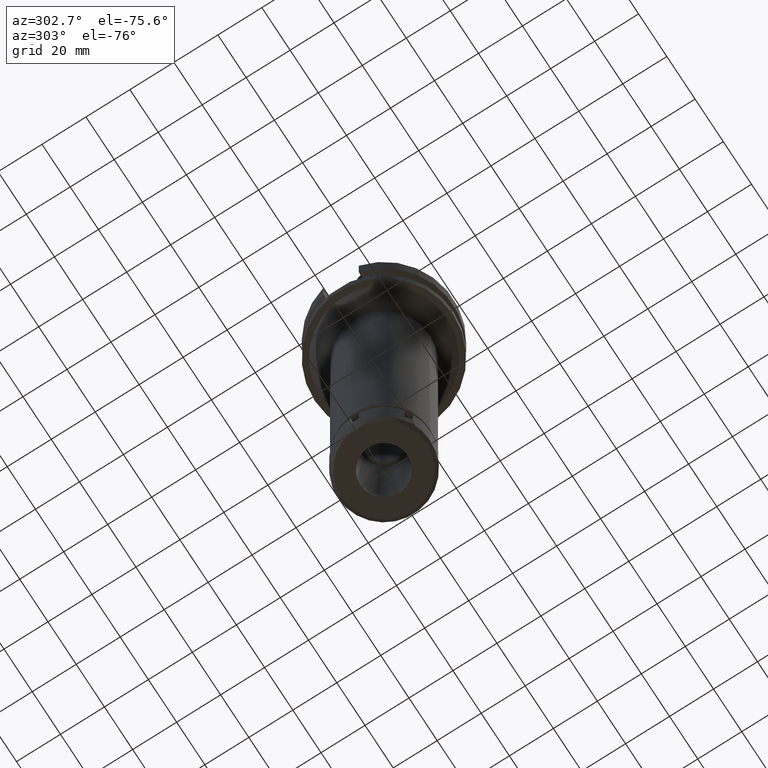
[diagram: clean part render]
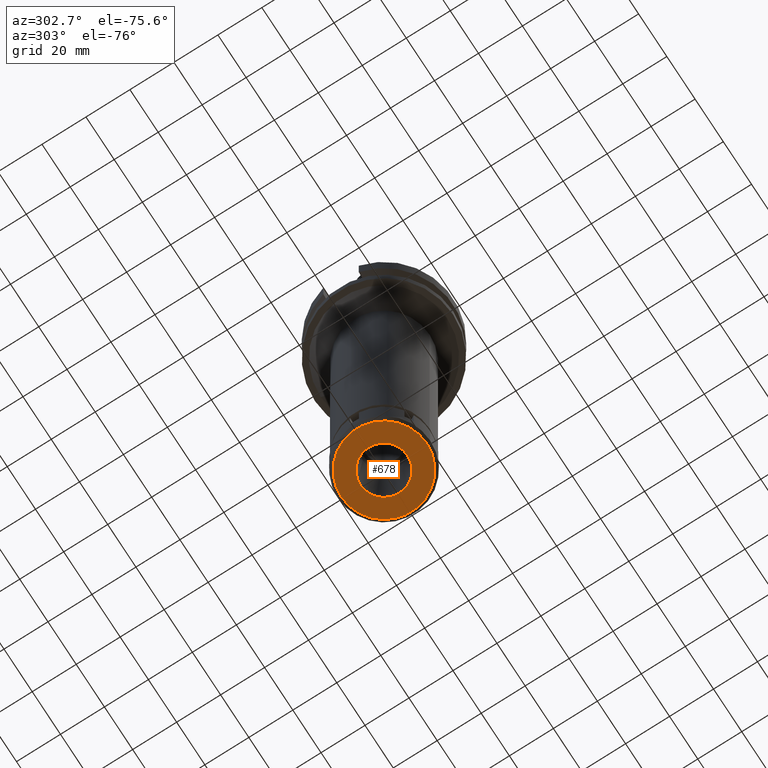
[diagram: same view with one face highlighted and labeled with its STEP entity id]
A machine part, auxiliary view. The second image highlights one B-rep face of the part: STEP entity #678.
In plain terms, the highlighted planar face has unit normal (0, 0, -1).
Its self-contained STEP definition (entity closure, byte-faithful):
#65 = VERTEX_POINT ( 'NONE', #3384 ) ;
#142 = FACE_OUTER_BOUND ( 'NONE', #734, .T. ) ;
#244 = EDGE_CURVE ( 'NONE', #2360, #2936, #848, .T. ) ;
#498 = VERTEX_POINT ( 'NONE', #3146 ) ;
#599 = DIRECTION ( 'NONE',  ( 0.0000000000000000000, 1.000000000000000000, 0.0000000000000000000 ) ) ;
#678 = ADVANCED_FACE ( 'NONE', ( #142, #2107 ), #1296, .T. ) ;
#706 = ORIENTED_EDGE ( 'NONE', *, *, #1178, .F. ) ;
#734 = EDGE_LOOP ( 'NONE', ( #706, #1969 ) ) ;
#755 = DIRECTION ( 'NONE',  ( 0.0000000000000000000, 0.0000000000000000000, -1.000000000000000000 ) ) ;
#812 = DIRECTION ( 'NONE',  ( 0.0000000000000000000, -1.000000000000000000, 0.0000000000000000000 ) ) ;
#848 = CIRCLE ( 'NONE', #3535, 10.75000000000000000 ) ;
#1163 = DIRECTION ( 'NONE',  ( 0.0000000000000000000, 0.0000000000000000000, 1.000000000000000000 ) ) ;
#1178 = EDGE_CURVE ( 'NONE', #498, #65, #2068, .T. ) ;
#1198 = CARTESIAN_POINT ( 'NONE',  ( 0.0000000000000000000, 0.0000000000000000000, -16.00000000000000000 ) ) ;
#1296 = PLANE ( 'NONE',  #1728 ) ;
#1311 = CARTESIAN_POINT ( 'NONE',  ( 0.0000000000000000000, 0.0000000000000000000, -16.00000000000000000 ) ) ;
#1498 = AXIS2_PLACEMENT_3D ( 'NONE', #1198, #1163, #3438 ) ;
#1558 = AXIS2_PLACEMENT_3D ( 'NONE', #3494, #2142, #1812 ) ;
#1728 = AXIS2_PLACEMENT_3D ( 'NONE', #1311, #755, #812 ) ;
#1812 = DIRECTION ( 'NONE',  ( 0.0000000000000000000, -1.000000000000000000, 0.0000000000000000000 ) ) ;
#1859 = CARTESIAN_POINT ( 'NONE',  ( 0.0000000000000000000, -10.75000000000000000, -16.00000000000000000 ) ) ;
#1901 = CIRCLE ( 'NONE', #1498, 19.50000000000000000 ) ;
#1920 = ORIENTED_EDGE ( 'NONE', *, *, #244, .F. ) ;
#1969 = ORIENTED_EDGE ( 'NONE', *, *, #2326, .F. ) ;
#2068 = CIRCLE ( 'NONE', #2528, 19.50000000000000000 ) ;
#2107 = FACE_BOUND ( 'NONE', #2772, .T. ) ;
#2142 = DIRECTION ( 'NONE',  ( 0.0000000000000000000, 0.0000000000000000000, -1.000000000000000000 ) ) ;
#2283 = CARTESIAN_POINT ( 'NONE',  ( 0.0000000000000000000, 0.0000000000000000000, -16.00000000000000000 ) ) ;
#2315 = CARTESIAN_POINT ( 'NONE',  ( 0.0000000000000000000, 10.75000000000000000, -16.00000000000000000 ) ) ;
#2326 = EDGE_CURVE ( 'NONE', #65, #498, #1901, .T. ) ;
#2360 = VERTEX_POINT ( 'NONE', #2315 ) ;
#2473 = CARTESIAN_POINT ( 'NONE',  ( 0.0000000000000000000, 0.0000000000000000000, -16.00000000000000000 ) ) ;
#2528 = AXIS2_PLACEMENT_3D ( 'NONE', #2473, #3029, #3610 ) ;
#2618 = EDGE_CURVE ( 'NONE', #2936, #2360, #3197, .T. ) ;
#2772 = EDGE_LOOP ( 'NONE', ( #1920, #3125 ) ) ;
#2936 = VERTEX_POINT ( 'NONE', #1859 ) ;
#3029 = DIRECTION ( 'NONE',  ( 0.0000000000000000000, 0.0000000000000000000, 1.000000000000000000 ) ) ;
#3125 = ORIENTED_EDGE ( 'NONE', *, *, #2618, .F. ) ;
#3146 = CARTESIAN_POINT ( 'NONE',  ( 0.0000000000000000000, 19.50000000000000000, -16.00000000000000000 ) ) ;
#3197 = CIRCLE ( 'NONE', #1558, 10.75000000000000000 ) ;
#3384 = CARTESIAN_POINT ( 'NONE',  ( 0.0000000000000000000, -19.50000000000000000, -16.00000000000000000 ) ) ;
#3417 = DIRECTION ( 'NONE',  ( 0.0000000000000000000, 0.0000000000000000000, -1.000000000000000000 ) ) ;
#3438 = DIRECTION ( 'NONE',  ( 0.0000000000000000000, -1.000000000000000000, 0.0000000000000000000 ) ) ;
#3494 = CARTESIAN_POINT ( 'NONE',  ( 0.0000000000000000000, 0.0000000000000000000, -16.00000000000000000 ) ) ;
#3535 = AXIS2_PLACEMENT_3D ( 'NONE', #2283, #3417, #599 ) ;
#3610 = DIRECTION ( 'NONE',  ( 0.0000000000000000000, 1.000000000000000000, 0.0000000000000000000 ) ) ;